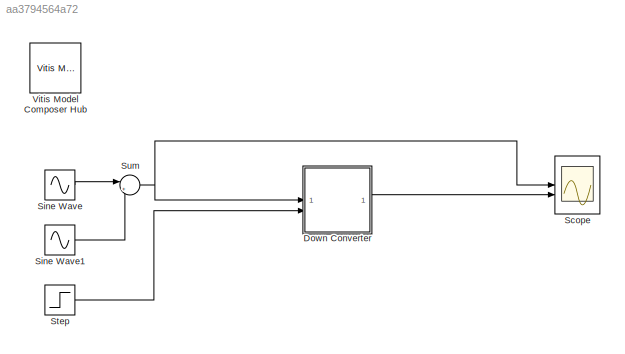
MODEL slx_aa3794564a72
KIND model
CONFIG AbsTol = auto
CONFIG EnableMultiTasking = off
CONFIG FixedStep = auto
CONFIG MaxStep = auto
CONFIG MinStep = auto
CONFIG RelTol = 1e-3
CONFIG SampleTimeConstraint = Unconstrained
CONFIG SolverName = VariableStepDiscrete
CONFIG StartTime = 0.0
CONFIG StopTime = 500
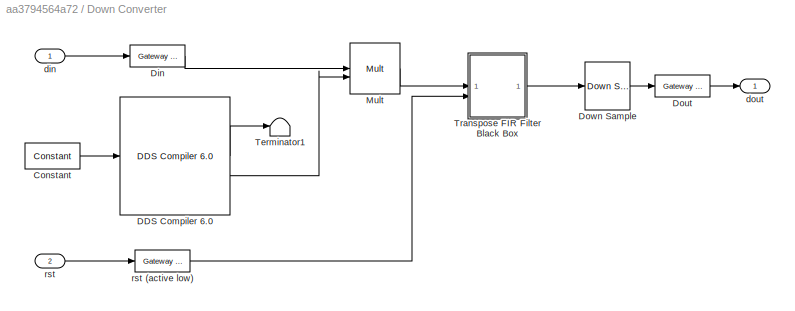
BLOCK [SubSystem] Down Converter
BLOCK [Reference] Down Converter/Constant  REF=hdlBasic/Constant
  SourceBlock = hdlBasic/Constant
  SourceType = Constant Block Block
BLOCK [Reference] Down Converter/DDS Compiler 6.0   REF=hdlDSPIP/DDS Compiler 6.0 
  SourceBlock = hdlDSPIP/DDS Compiler 6.0
  SourceType = DDS Compiler 6.0 Block
BLOCK [Reference] Down Converter/Din  REF=hdlBasic/Gateway In
  SourceBlock = hdlBasic/Gateway In
  SourceType = Gateway In Block
BLOCK [Reference] Down Converter/Dout  REF=hdlBasic/Gateway Out
  SourceBlock = hdlBasic/Gateway Out
  SourceType = Gateway Out Block
BLOCK [Reference] Down Converter/Down Sample  REF=hdlBasic/Down Sample
  SourceBlock = hdlBasic/Down Sample
  SourceType = Down Sampler Block
BLOCK [Reference] Down Converter/Mult  REF=hdlBasic/Mult
  SourceBlock = hdlBasic/Mult
  SourceType = Multiplier Block
BLOCK [Terminator] Down Converter/Terminator1
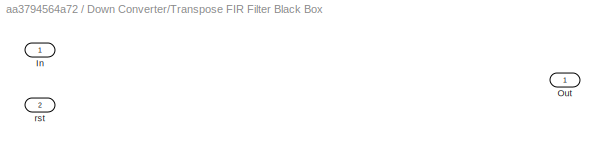
BLOCK [SubSystem] Down Converter/Transpose FIR Filter Black Box
BLOCK [Inport] Down Converter/Transpose FIR Filter Black Box/In
BLOCK [Outport] Down Converter/Transpose FIR Filter Black Box/Out
  VectorParamsAs1DForOutWhenUnconnected = off
BLOCK [Inport] Down Converter/Transpose FIR Filter Black Box/rst
  Port = 2
BLOCK [Inport] Down Converter/din
BLOCK [Outport] Down Converter/dout
  VectorParamsAs1DForOutWhenUnconnected = off
BLOCK [Inport] Down Converter/rst
  Port = 2
BLOCK [Reference] Down Converter/rst (active low)  REF=hdlBasic/Gateway In
  SourceBlock = hdlBasic/Gateway In
  SourceType = Gateway In Block
BLOCK [Scope] Scope
  Floating = off
  NumInputPorts = 2
  ScopeSpecificationString = Simulink.scopes.TimeScopeBlockCfg('CurrentConfiguration', extmgr.ConfigurationSet(extmgr.Configuration('Core','General UI',true,'DisplayFullSourceName',false,'ShowMainToolbar',true),extmgr.Configuration('Sources','WiredSimulink',true,'DataLogging',false,'DataLoggingVariableName','ScopeData','DataLoggingLimitDataPoints',true,'DataLoggingMaxPoints','5000','DataLoggingDecimateData',true,'DataLoggingD...<+2787ch>
BLOCK [Sin] Sine Wave
  Frequency = 2*pi*.31
  SampleTime = 1
BLOCK [Sin] Sine Wave1
  Frequency = 2*pi*.45
  SampleTime = 1
BLOCK [Step] Step
  SampleTime = 1
BLOCK [Sum] Sum
  Inputs = |++
  SaturateOnIntegerOverflow = on
BLOCK [Reference] Vitis Model Composer Hub  REF=vmcUtilities/Vitis Model Composer Hub
  SourceBlock = vmcUtilities/Vitis Model Composer Hub
  SourceType = VMC Hub
  Tag = genX
  UserDataPersistent = on
LINE Down Converter/Constant:1 -> Down Converter/DDS Compiler 6.0 :1
LINE Down Converter/DDS Compiler 6.0 :1 -> Down Converter/Terminator1:1
LINE Down Converter/DDS Compiler 6.0 :2 -> Down Converter/Mult:2
LINE Down Converter/Din:1 -> Down Converter/Mult:1
LINE Down Converter/Dout:1 -> Down Converter/dout:1
LINE Down Converter/Down Sample:1 -> Down Converter/Dout:1
LINE Down Converter/Mult:1 -> Down Converter/Transpose FIR Filter Black Box:1
LINE Down Converter/Transpose FIR Filter Black Box:1 -> Down Converter/Down Sample:1
LINE Down Converter/din:1 -> Down Converter/Din:1
LINE Down Converter/rst (active low):1 -> Down Converter/Transpose FIR Filter Black Box:2
LINE Down Converter/rst:1 -> Down Converter/rst (active low):1
LINE Down Converter:1 -> Scope:2
LINE Sine Wave1:1 -> Sum:2
LINE Sine Wave:1 -> Sum:1
LINE Step:1 -> Down Converter:2
NET Sum:1 -> Down Converter:1, Scope:1
note: NET lines group one-source signal fan-out (src -> all destinations, sorted); 1:1 wires keep LINE
